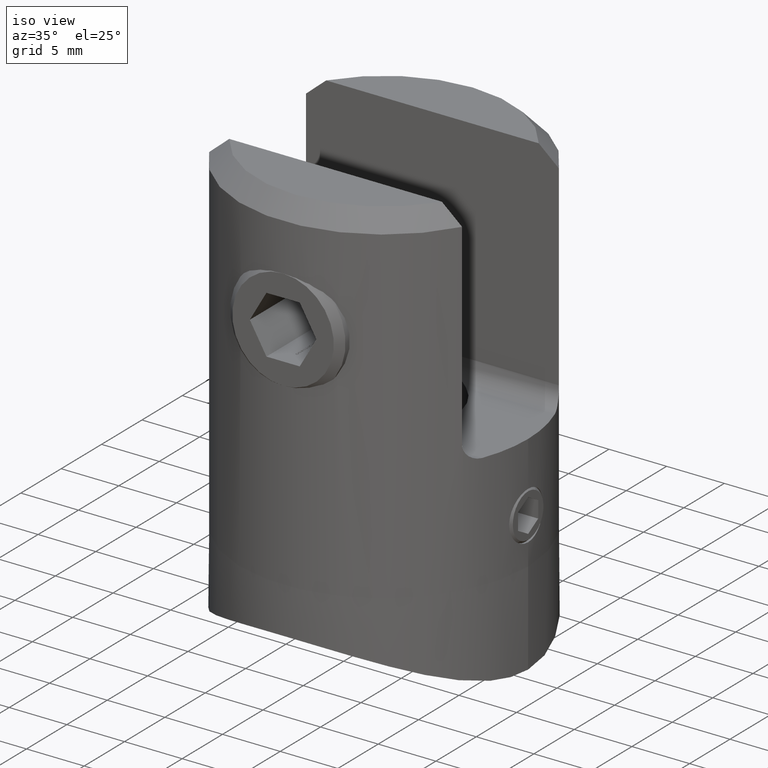
[diagram: clean part render]
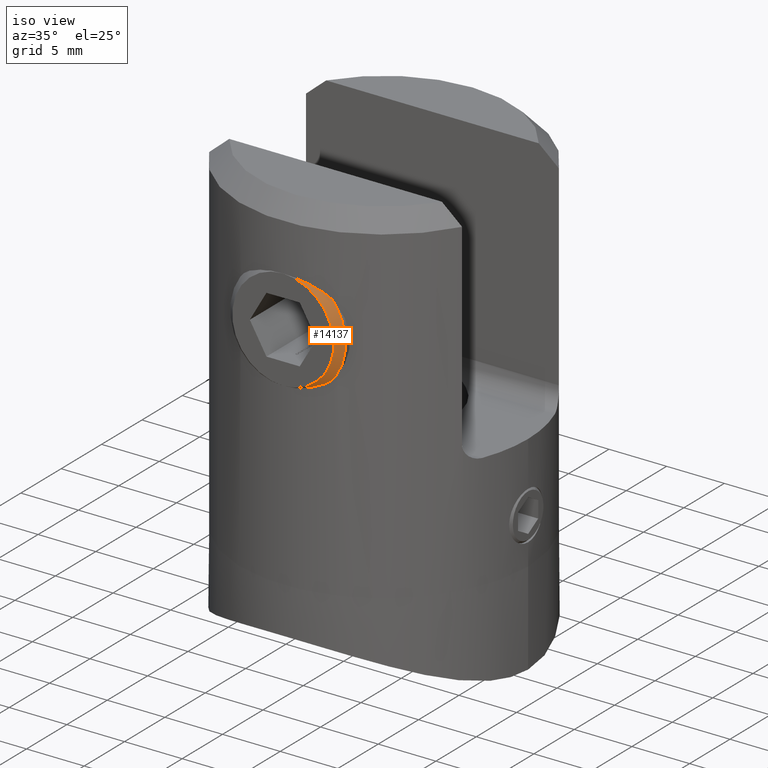
[diagram: same view with one face highlighted and labeled with its STEP entity id]
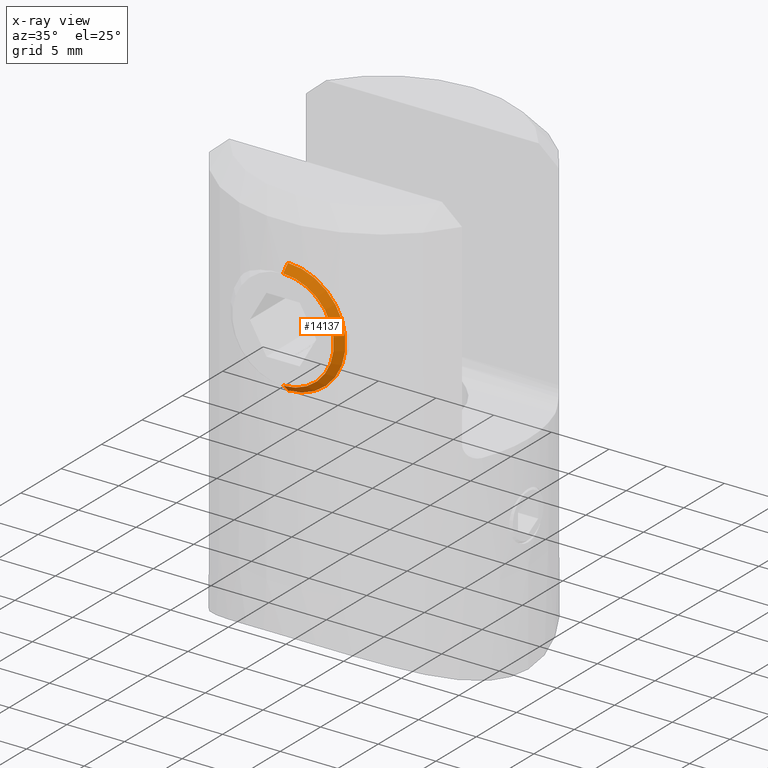
[diagram: x-ray of the same camera — body ghosted, the highlighted face saturated]
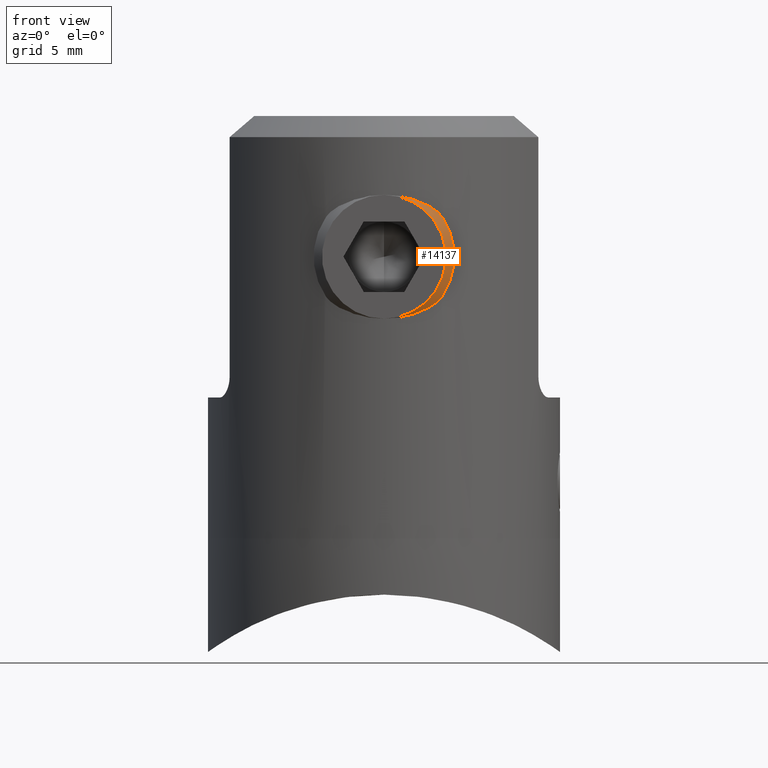
[diagram: same view with one face highlighted and labeled with its STEP entity id]
A machine part, iso view. The second image highlights one B-rep face of the part: STEP entity #14137.
The next image is the same camera in x-ray: the body ghosted, the highlighted face saturated — about 0% of this face is hidden behind the body in this view.
A second angle (front view) of the same face is appended — the face is thin or edge-on in the first view.
In plain terms, the highlighted conical surface has half-angle 45 deg.
Its self-contained STEP definition (entity closure, byte-faithful):
#77 = ORIENTED_EDGE ( 'NONE', *, *, #25009, .F. ) ;
#1166 = DIRECTION ( 'NONE',  ( 0.000000000000000000, 0.000000000000000000, 1.000000000000000000 ) ) ;
#1624 = VECTOR ( 'NONE', #10418, 1000.000000000000000 ) ;
#2608 = ORIENTED_EDGE ( 'NONE', *, *, #9670, .F. ) ;
#4123 = DIRECTION ( 'NONE',  ( 1.000000000000000000, 0.000000000000000000, 0.000000000000000000 ) ) ;
#4315 = CARTESIAN_POINT ( 'NONE',  ( 11.40000000000000036, 0.000000000000000000, 5.000000000000000000 ) ) ;
#5173 = LINE ( 'NONE', #20647, #1624 ) ;
#6379 = VERTEX_POINT ( 'NONE', #10781 ) ;
#8051 = CARTESIAN_POINT ( 'NONE',  ( 11.40000000000000036, 0.000000000000000000, 0.000000000000000000 ) ) ;
#8499 = CIRCLE ( 'NONE', #14689, 4.399999999999999467 ) ;
#9670 = EDGE_CURVE ( 'NONE', #17346, #26195, #23503, .T. ) ;
#9885 = EDGE_LOOP ( 'NONE', ( #77, #12916, #2608, #12655 ) ) ;
#10418 = DIRECTION ( 'NONE',  ( -0.7071067811865470176, 8.659560562354939021E-17, -0.7071067811865480168 ) ) ;
#10781 = CARTESIAN_POINT ( 'NONE',  ( 12.00000000000000000, 5.755839955992559655E-16, -4.399999999999999467 ) ) ;
#12519 = LINE ( 'NONE', #21447, #20011 ) ;
#12655 = ORIENTED_EDGE ( 'NONE', *, *, #23138, .F. ) ;
#12916 = ORIENTED_EDGE ( 'NONE', *, *, #29597, .T. ) ;
#12939 = CONICAL_SURFACE ( 'NONE', #17090, 4.399999999999999467, 0.7853981633974490562 ) ;
#14137 = ADVANCED_FACE ( 'NONE', ( #31277 ), #12939, .T. ) ;
#14689 = AXIS2_PLACEMENT_3D ( 'NONE', #19231, #4123, #22095 ) ;
#15521 = DIRECTION ( 'NONE',  ( -1.000000000000000000, 0.000000000000000000, 0.000000000000000000 ) ) ;
#17090 = AXIS2_PLACEMENT_3D ( 'NONE', #28765, #26343, #1166 ) ;
#17346 = VERTEX_POINT ( 'NONE', #4315 ) ;
#18071 = CARTESIAN_POINT ( 'NONE',  ( 12.00000000000000000, 0.000000000000000000, 4.399999999999999467 ) ) ;
#19231 = CARTESIAN_POINT ( 'NONE',  ( 12.00000000000000000, 0.000000000000000000, 0.000000000000000000 ) ) ;
#20011 = VECTOR ( 'NONE', #21331, 1000.000000000000000 ) ;
#20647 = CARTESIAN_POINT ( 'NONE',  ( 12.00000000000000000, 5.388445916248353027E-16, -4.399999999999999467 ) ) ;
#21331 = DIRECTION ( 'NONE',  ( -0.7071067811865470176, 0.000000000000000000, 0.7071067811865480168 ) ) ;
#21447 = CARTESIAN_POINT ( 'NONE',  ( 12.00000000000000000, 0.000000000000000000, 4.399999999999999467 ) ) ;
#22095 = DIRECTION ( 'NONE',  ( 0.000000000000000000, 0.000000000000000000, -1.000000000000000000 ) ) ;
#23138 = EDGE_CURVE ( 'NONE', #25780, #17346, #12519, .T. ) ;
#23503 = CIRCLE ( 'NONE', #26710, 5.000000000000000000 ) ;
#25009 = EDGE_CURVE ( 'NONE', #6379, #25780, #8499, .T. ) ;
#25780 = VERTEX_POINT ( 'NONE', #18071 ) ;
#26195 = VERTEX_POINT ( 'NONE', #31997 ) ;
#26343 = DIRECTION ( 'NONE',  ( -1.000000000000000000, 0.000000000000000000, 0.000000000000000000 ) ) ;
#26710 = AXIS2_PLACEMENT_3D ( 'NONE', #8051, #15521, #28156 ) ;
#28156 = DIRECTION ( 'NONE',  ( 0.000000000000000000, 0.000000000000000000, -1.000000000000000000 ) ) ;
#28765 = CARTESIAN_POINT ( 'NONE',  ( 12.00000000000000000, 0.000000000000000000, 0.000000000000000000 ) ) ;
#29597 = EDGE_CURVE ( 'NONE', #6379, #26195, #5173, .T. ) ;
#31277 = FACE_OUTER_BOUND ( 'NONE', #9885, .T. ) ;
#31997 = CARTESIAN_POINT ( 'NONE',  ( 11.40000000000000036, 6.123233995736766282E-16, -5.000000000000000000 ) ) ;